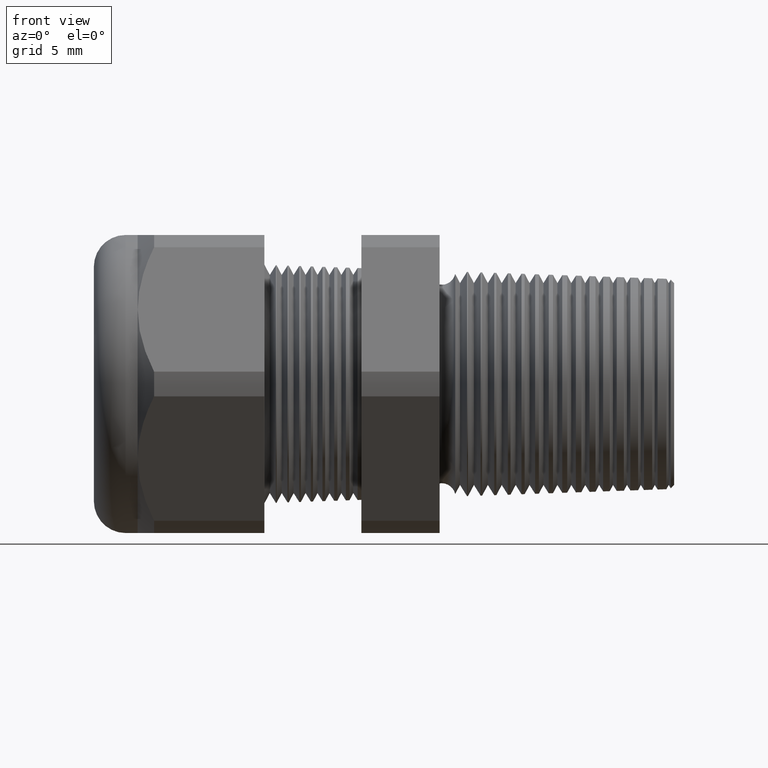
[diagram: clean part render]
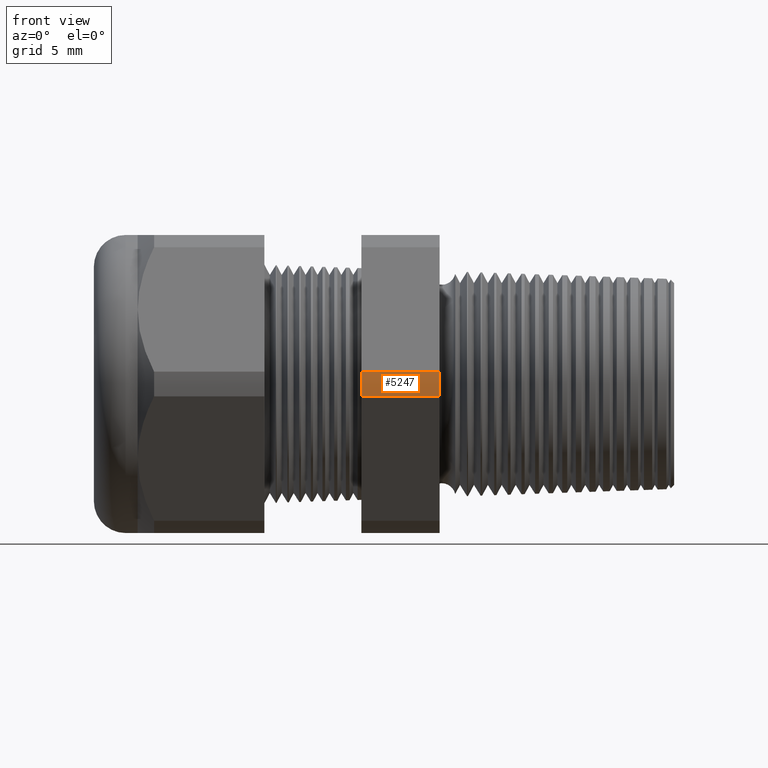
[diagram: same view with one face highlighted and labeled with its STEP entity id]
A machine part, front view. The second image highlights one B-rep face of the part: STEP entity #5247.
In plain terms, the highlighted cylindrical surface (partial cylindrical patch) has radius 10.5728 mm, axis along (-1, 0, 0).
Its self-contained STEP definition (entity closure, byte-faithful):
#38 = EDGE_CURVE ( 'NONE', #41, #243, #1603, .T. ) ;
#41 = VERTEX_POINT ( 'NONE', #1662 ) ;
#171 = VERTEX_POINT ( 'NONE', #1905 ) ;
#173 = EDGE_CURVE ( 'NONE', #171, #174, #1904, .T. ) ;
#174 = VERTEX_POINT ( 'NONE', #1899 ) ;
#243 = VERTEX_POINT ( 'NONE', #2082 ) ;
#1601 = CARTESIAN_POINT ( 'NONE',  ( -0.5068503937007873300, 0.0000000000000000000, 0.0000000000000000000 ) ) ;
#1602 = AXIS2_PLACEMENT_3D ( 'NONE', #1601, #1664, #1663 ) ;
#1603 = CIRCLE ( 'NONE', #1602, 0.4162500000000001200 ) ;
#1662 = CARTESIAN_POINT ( 'NONE',  ( -0.5068503937007873300, -0.4150909474475088000, -0.03104138925901222700 ) ) ;
#1663 = DIRECTION ( 'NONE',  ( 0.0000000000000000000, 0.0000000000000000000, 1.000000000000000000 ) ) ;
#1664 = DIRECTION ( 'NONE',  ( -1.000000000000000000, 0.0000000000000000000, 0.0000000000000000000 ) ) ;
#1899 = CARTESIAN_POINT ( 'NONE',  ( -0.3100000000000000000, -0.4150909474475088000, -0.03104138925901222700 ) ) ;
#1900 = DIRECTION ( 'NONE',  ( 0.0000000000000000000, 0.0000000000000000000, -1.000000000000000000 ) ) ;
#1901 = DIRECTION ( 'NONE',  ( 1.000000000000000000, 0.0000000000000000000, 0.0000000000000000000 ) ) ;
#1902 = CARTESIAN_POINT ( 'NONE',  ( -0.3100000000000000000, 0.0000000000000000000, 0.0000000000000000000 ) ) ;
#1903 = AXIS2_PLACEMENT_3D ( 'NONE', #1902, #1901, #1900 ) ;
#1904 = CIRCLE ( 'NONE', #1903, 0.4162500000000001200 ) ;
#1905 = CARTESIAN_POINT ( 'NONE',  ( -0.3100000000000000000, -0.4150909474475088500, 0.03104138925901205400 ) ) ;
#2082 = CARTESIAN_POINT ( 'NONE',  ( -0.5068503937007873300, -0.4150909474475088500, 0.03104138925901205400 ) ) ;
#4671 = DIRECTION ( 'NONE',  ( 0.0000000000000000000, 0.0000000000000000000, 1.000000000000000000 ) ) ;
#4672 = DIRECTION ( 'NONE',  ( -1.000000000000000000, 0.0000000000000000000, 0.0000000000000000000 ) ) ;
#4673 = AXIS2_PLACEMENT_3D ( 'NONE', #4680, #4672, #4671 ) ;
#4675 = CYLINDRICAL_SURFACE ( 'NONE', #4673, 0.4162500000000001200 ) ;
#4676 = FACE_OUTER_BOUND ( 'NONE', #5506, .T. ) ;
#4680 = CARTESIAN_POINT ( 'NONE',  ( 0.2800000000000000300, 0.0000000000000000000, 0.0000000000000000000 ) ) ;
#4941 = DIRECTION ( 'NONE',  ( -1.000000000000000000, 0.0000000000000000000, 0.0000000000000000000 ) ) ;
#4942 = VECTOR ( 'NONE', #4941, 39.37007874015748100 ) ;
#4943 = CARTESIAN_POINT ( 'NONE',  ( 0.2800000000000000300, -0.4150909474475088500, 0.03104138925901205400 ) ) ;
#4944 = LINE ( 'NONE', #4943, #4942 ) ;
#4982 = DIRECTION ( 'NONE',  ( -1.000000000000000000, 0.0000000000000000000, 0.0000000000000000000 ) ) ;
#4983 = VECTOR ( 'NONE', #4982, 39.37007874015748100 ) ;
#4984 = CARTESIAN_POINT ( 'NONE',  ( 0.2800000000000000300, -0.4150909474475088000, -0.03104138925901222700 ) ) ;
#4985 = LINE ( 'NONE', #4984, #4983 ) ;
#5247 = ADVANCED_FACE ( 'NONE', ( #4676 ), #4675, .T. ) ;
#5486 = EDGE_CURVE ( 'NONE', #171, #243, #4944, .T. ) ;
#5502 = ORIENTED_EDGE ( 'NONE', *, *, #173, .F. ) ;
#5503 = EDGE_CURVE ( 'NONE', #174, #41, #4985, .T. ) ;
#5504 = ORIENTED_EDGE ( 'NONE', *, *, #5503, .F. ) ;
#5505 = ORIENTED_EDGE ( 'NONE', *, *, #38, .F. ) ;
#5506 = EDGE_LOOP ( 'NONE', ( #5507, #5505, #5504, #5502 ) ) ;
#5507 = ORIENTED_EDGE ( 'NONE', *, *, #5486, .T. ) ;